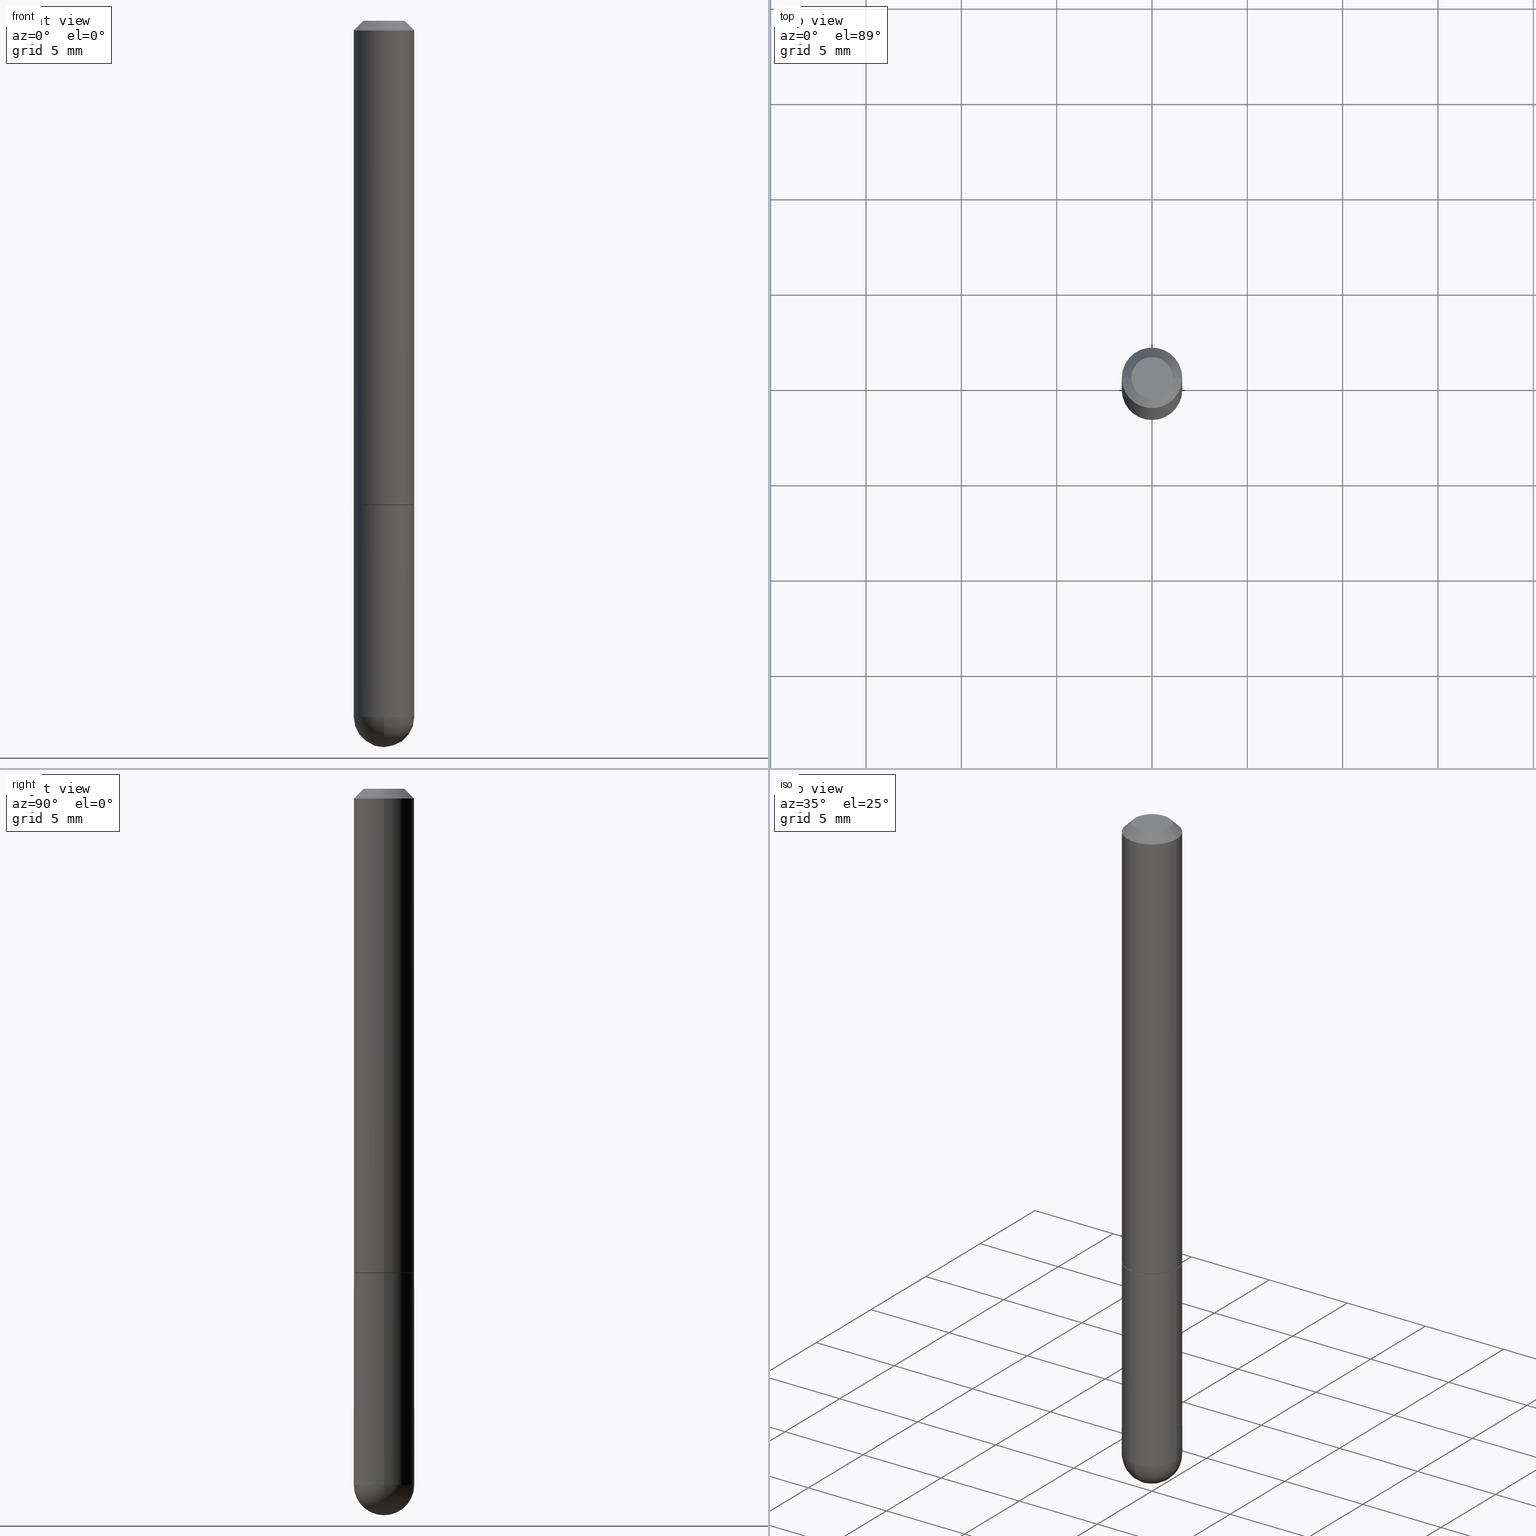
[diagram: canonical four-view strip — front | top / right | iso, engineering-drawing reading convention]
A machine part, canonical four-view strip (front | top / right | iso — engineering-drawing reading convention). The complete STEP part file that produces these views, byte-faithful:
ISO-10303-21;
HEADER;
FILE_DESCRIPTION (( 'STEP AP203' ),
    '1' );
FILE_NAME ('30858.STEP',
    '2024-02-21T16:42:19',
    ( '' ),
    ( '' ),
    'SwSTEP 2.0',
    'SolidWorks 2023',
    '' );
FILE_SCHEMA (( 'CONFIG_CONTROL_DESIGN' ));
ENDSEC;

DATA;
#1 =( CONVERSION_BASED_UNIT ( 'INCH', #292 ) LENGTH_UNIT ( ) NAMED_UNIT ( #169 ) );
#2 = EDGE_LOOP ( 'NONE', ( #7, #133, #82, #148 ) ) ;
#3 = DIRECTION ( 'NONE',  ( 6.982962677686265922E-15, 1.000000000000000000, -4.370956789862807739E-15 ) ) ;
#4 = EDGE_CURVE ( 'NONE', #388, #5, #366, .T. ) ;
#5 = VERTEX_POINT ( 'NONE', #336 ) ;
#6 = APPROVAL_STATUS ( 'not_yet_approved' ) ;
#7 = ORIENTED_EDGE ( 'NONE', *, *, #222, .F. ) ;
#8 = CIRCLE ( 'NONE', #97, 0.06149999999999999911 ) ;
#9 = DATE_TIME_ROLE ( 'creation_date' ) ;
#10 = CARTESIAN_POINT ( 'NONE',  ( 0.000000000000000000, 0.000000000000000000, 0.000000000000000000 ) ) ;
#11 = EDGE_CURVE ( 'NONE', #197, #173, #402, .T. ) ;
#12 = MANIFOLD_SOLID_BREP ( 'Body-Move/Copy2[1]', #325 ) ;
#13 = COORDINATED_UNIVERSAL_TIME_OFFSET ( 5, 0, .BEHIND. ) ;
#14 = ORIENTED_EDGE ( 'NONE', *, *, #85, .T. ) ;
#15 = PRODUCT_DEFINITION ( 'UNKNOWN', '', #84, #73 ) ;
#16 = PERSON_AND_ORGANIZATION ( #90, #67 ) ;
#17 = ORIENTED_EDGE ( 'NONE', *, *, #331, .T. ) ;
#18 = ORIENTED_EDGE ( 'NONE', *, *, #337, .F. ) ;
#19 = CARTESIAN_POINT ( 'NONE',  ( -0.06249999999999995143, 3.666055405785281740E-16, -0.02000000000000006981 ) ) ;
#20 = DIRECTION ( 'NONE',  ( -2.438088387897960049E-29, 3.491481338843145188E-15, 1.000000000000000000 ) ) ;
#21 = EDGE_CURVE ( 'NONE', #359, #357, #263, .T. ) ;
#22 = AXIS2_PLACEMENT_3D ( 'NONE', #220, #405, #128 ) ;
#23 = CLOSED_SHELL ( 'NONE', ( #65, #59, #294, #266, #350, #280, #168, #360 ) ) ;
#24 = DIRECTION ( 'NONE',  ( -2.445468806185136597E-29, 3.491481338843145583E-15, 1.000000000000000000 ) ) ;
#25 = CYLINDRICAL_SURFACE ( 'NONE', #347, 0.06249999999999997224 ) ;
#26 = SPHERICAL_SURFACE ( 'NONE', #394, 0.06250000000000018041 ) ;
#27 = FACE_OUTER_BOUND ( 'NONE', #370, .T. ) ;
#28 = LOCAL_TIME ( 11, 42, 19.00000000000000000, #48 ) ;
#29 = ORIENTED_EDGE ( 'NONE', *, *, #218, .F. ) ;
#30 = CARTESIAN_POINT ( 'NONE',  ( 3.184241630977247611E-29, -5.493186792727071849E-15, -1.437500000000000000 ) ) ;
#31 = VERTEX_POINT ( 'NONE', #272 ) ;
#32 = DIRECTION ( 'NONE',  ( 1.000000000000000000, -6.982962677686265922E-15, 4.852736867747402641E-29 ) ) ;
#33 = EDGE_LOOP ( 'NONE', ( #302, #29 ) ) ;
#34 = EDGE_CURVE ( 'NONE', #398, #359, #121, .T. ) ;
#35 = FACE_OUTER_BOUND ( 'NONE', #188, .T. ) ;
#36 = CIRCLE ( 'NONE', #333, 0.06250000000000013878 ) ;
#37 = ORIENTED_EDGE ( 'NONE', *, *, #11, .T. ) ;
#38 = AXIS2_PLACEMENT_3D ( 'NONE', #260, #374, #83 ) ;
#39 = DIRECTION ( 'NONE',  ( 0.7071067811865472397, -7.319954787623254468E-15, -0.7071067811865477948 ) ) ;
#40 = ORIENTED_EDGE ( 'NONE', *, *, #85, .F. ) ;
#41 = APPROVAL_ROLE ( '' ) ;
#42 = VERTEX_POINT ( 'NONE', #369 ) ;
#43 = CARTESIAN_POINT ( 'NONE',  ( 0.000000000000000000, 0.000000000000000000, 0.000000000000000000 ) ) ;
#44 = ORIENTED_EDGE ( 'NONE', *, *, #144, .F. ) ;
#45 = VECTOR ( 'NONE', #285, 39.37007874015748143 ) ;
#46 = APPLICATION_PROTOCOL_DEFINITION ( 'international standard', 'config_control_design', 1994, #257 ) ;
#47 = ORIENTED_EDGE ( 'NONE', *, *, #253, .T. ) ;
#48 = COORDINATED_UNIVERSAL_TIME_OFFSET ( 5, 0, .BEHIND. ) ;
#49 = DIRECTION ( 'NONE',  ( -2.445468806185136597E-29, 3.491481338843145583E-15, 1.000000000000000000 ) ) ;
#50 = ORIENTED_EDGE ( 'NONE', *, *, #247, .T. ) ;
#51 = DIRECTION ( 'NONE',  ( -0.7071067811866199593, 7.493145998870616062E-15, 0.7071067811864750752 ) ) ;
#52 = CC_DESIGN_PERSON_AND_ORGANIZATION_ASSIGNMENT ( #16, #330, ( #108 ) ) ;
#53 = LINE ( 'NONE', #159, #45 ) ;
#54 = PLANE ( 'NONE',  #223 ) ;
#55 = EDGE_CURVE ( 'NONE', #354, #107, #306, .T. ) ;
#56 = LINE ( 'NONE', #154, #224 ) ;
#57 = PLANE ( 'NONE',  #275 ) ;
#58 = DIRECTION ( 'NONE',  ( -2.445468806185136597E-29, 3.491481338843145583E-15, 1.000000000000000000 ) ) ;
#59 = ADVANCED_FACE ( 'NONE', ( #213 ), #207, .T. ) ;
#60 = DIRECTION ( 'NONE',  ( -1.000000000000000000, 6.982962677686265922E-15, -4.876176775795935793E-29 ) ) ;
#61 = VERTEX_POINT ( 'NONE', #244 ) ;
#62 = CARTESIAN_POINT ( 'NONE',  ( 0.06249999999999995143, -4.986107516375835278E-16, -0.02000000000000006981 ) ) ;
#63 = DIRECTION ( 'NONE',  ( -2.445468806185136597E-29, 3.491481338843145583E-15, 1.000000000000000000 ) ) ;
#64 = EDGE_LOOP ( 'NONE', ( #202, #339 ) ) ;
#65 = ADVANCED_FACE ( 'NONE', ( #211 ), #313, .T. ) ;
#66 =( LENGTH_UNIT ( ) NAMED_UNIT ( * ) SI_UNIT ( $, .METRE. ) );
#67 = ORGANIZATION ( 'UNSPECIFIED', 'UNSPECIFIED', '' ) ;
#68 = ORIENTED_EDGE ( 'NONE', *, *, #4, .F. ) ;
#69 =( NAMED_UNIT ( * ) SI_UNIT ( $, .STERADIAN. ) SOLID_ANGLE_UNIT ( ) );
#70 = ORIENTED_EDGE ( 'NONE', *, *, #74, .F. ) ;
#71 = PERSON_AND_ORGANIZATION ( #90, #67 ) ;
#72 = DIRECTION ( 'NONE',  ( -2.445468806185136597E-29, 3.491481338843145583E-15, 1.000000000000000000 ) ) ;
#73 = DESIGN_CONTEXT ( 'detailed design', #257, 'design' ) ;
#74 = EDGE_CURVE ( 'NONE', #173, #388, #345, .T. ) ;
#75 = CARTESIAN_POINT ( 'NONE',  ( 2.445468806185136877E-29, -3.491481338843145977E-15, -1.000000000000000222 ) ) ;
#76 = AXIS2_PLACEMENT_3D ( 'NONE', #399, #241, #303 ) ;
#77 = AXIS2_PLACEMENT_3D ( 'NONE', #123, #130, #346 ) ;
#78 = CIRCLE ( 'NONE', #170, 0.06249999999999995143 ) ;
#79 = SHAPE_DEFINITION_REPRESENTATION ( #102, #167 ) ;
#80 = CARTESIAN_POINT ( 'NONE',  ( -0.06250000000000004163, 4.440892098500629120E-16, -3.074334431409318216E-30 ) ) ;
#81 = APPROVAL_DATE_TIME ( #149, #319 ) ;
#82 = ORIENTED_EDGE ( 'NONE', *, *, #236, .T. ) ;
#83 = DIRECTION ( 'NONE',  ( 6.982962677686266711E-15, 1.000000000000000000, 0.000000000000000000 ) ) ;
#84 = PRODUCT_DEFINITION_FORMATION_WITH_SPECIFIED_SOURCE ( 'ANY', '', #108, .NOT_KNOWN. ) ;
#85 = EDGE_CURVE ( 'NONE', #197, #5, #230, .T. ) ;
#86 = APPLICATION_CONTEXT ( 'configuration controlled 3d designs of mechanical parts and assemblies' ) ;
#87 = AXIS2_PLACEMENT_3D ( 'NONE', #143, #146, #249 ) ;
#88 = CARTESIAN_POINT ( 'NONE',  ( 0.06249999999999995143, -4.986107516375835278E-16, -0.02000000000000006981 ) ) ;
#89 = DIRECTION ( 'NONE',  ( 1.000000000000000000, -6.982962677686270655E-15, 0.000000000000000000 ) ) ;
#90 = PERSON ( 'UNSPECIFIED', 'UNSPECIFIED', 'UNSPECIFIED', ('UNSPECIFIED'), ('UNSPECIFIED'), ('UNSPECIFIED') ) ;
#91 = DIRECTION ( 'NONE',  ( 6.982962677686265922E-15, 1.000000000000000000, -4.370956789862807739E-15 ) ) ;
#92 = CONICAL_SURFACE ( 'NONE', #237, 0.06149999999999999911, 0.7853981633975507526 ) ;
#93 = DIRECTION ( 'NONE',  ( 1.000000000000000000, -6.982962677686268288E-15, 0.000000000000000000 ) ) ;
#94 = DIRECTION ( 'NONE',  ( -1.000000000000000000, 6.982962677686265922E-15, -4.883557194083112340E-29 ) ) ;
#95 = DIRECTION ( 'NONE',  ( -2.445468806185136597E-29, 3.491481338843145583E-15, 1.000000000000000000 ) ) ;
#96 = EDGE_CURVE ( 'NONE', #398, #173, #78, .T. ) ;
#97 = AXIS2_PLACEMENT_3D ( 'NONE', #190, #403, #125 ) ;
#98 = DIRECTION ( 'NONE',  ( 1.000000000000000000, -6.982962677686265922E-15, 4.852736867747402641E-29 ) ) ;
#99 = ORIENTED_EDGE ( 'NONE', *, *, #242, .F. ) ;
#100 = CARTESIAN_POINT ( 'NONE',  ( -0.06249999999999995143, -3.811153671865022332E-15, -1.437500000000000222 ) ) ;
#101 = ORIENTED_EDGE ( 'NONE', *, *, #111, .F. ) ;
#102 = PRODUCT_DEFINITION_SHAPE ( 'NONE', 'NONE',  #15 ) ;
#103 = DIRECTION ( 'NONE',  ( -2.445468806185136597E-29, 3.491481338843145583E-15, 1.000000000000000000 ) ) ;
#104 = VERTEX_POINT ( 'NONE', #88 ) ;
#105 = DATE_AND_TIME ( #179, #160 ) ;
#106 = AXIS2_PLACEMENT_3D ( 'NONE', #43, #109, #299 ) ;
#107 = VERTEX_POINT ( 'NONE', #19 ) ;
#108 = PRODUCT ( '30858', '30858', '', ( #265 ) ) ;
#109 = DIRECTION ( 'NONE',  ( 0.000000000000000000, 0.000000000000000000, 1.000000000000000000 ) ) ;
#110 = DIRECTION ( 'NONE',  ( -2.445468806185136877E-29, 3.491481338843145188E-15, 1.000000000000000000 ) ) ;
#111 = EDGE_CURVE ( 'NONE', #388, #357, #255, .T. ) ;
#112 = CALENDAR_DATE ( 2024, 21, 2 ) ;
#113 = ORIENTED_EDGE ( 'NONE', *, *, #337, .T. ) ;
#114 = APPROVAL_ROLE ( '' ) ;
#115 = ORIENTED_EDGE ( 'NONE', *, *, #391, .T. ) ;
#116 = AXIS2_PLACEMENT_3D ( 'NONE', #10, #390, #329 ) ;
#117 = AXIS2_PLACEMENT_3D ( 'NONE', #30, #94, #3 ) ;
#118 = CIRCLE ( 'NONE', #348, 0.06249999999999995143 ) ;
#119 = PERSON_AND_ORGANIZATION ( #90, #67 ) ;
#120 = ORIENTED_EDGE ( 'NONE', *, *, #343, .F. ) ;
#121 = LINE ( 'NONE', #332, #182 ) ;
#122 = CC_DESIGN_PERSON_AND_ORGANIZATION_ASSIGNMENT ( #243, #271, ( #281 ) ) ;
#123 = CARTESIAN_POINT ( 'NONE',  ( 2.445468806185136877E-29, -3.491481338843145977E-15, -1.000000000000000222 ) ) ;
#124 = CIRCLE ( 'NONE', #353, 0.06249999999999995143 ) ;
#125 = DIRECTION ( 'NONE',  ( 1.000000000000000000, -6.982962677686269866E-15, 0.000000000000000000 ) ) ;
#126 = CC_DESIGN_DATE_AND_TIME_ASSIGNMENT ( #368, #273, ( #281 ) ) ;
#127 = FACE_OUTER_BOUND ( 'NONE', #33, .T. ) ;
#128 = DIRECTION ( 'NONE',  ( -1.000000000000000000, 6.982962677686266711E-15, 0.000000000000000000 ) ) ;
#129 = APPROVAL_PERSON_ORGANIZATION ( #185, #307, #206 ) ;
#130 = DIRECTION ( 'NONE',  ( -2.445468806185136597E-29, 3.491481338843145583E-15, 1.000000000000000000 ) ) ;
#131 = CYLINDRICAL_SURFACE ( 'NONE', #135, 0.06249999999999997224 ) ;
#132 = DIRECTION ( 'NONE',  ( 2.445468806185136597E-29, -3.491481338843145583E-15, -1.000000000000000000 ) ) ;
#133 = ORIENTED_EDGE ( 'NONE', *, *, #218, .T. ) ;
#134 = EDGE_CURVE ( 'NONE', #104, #107, #118, .T. ) ;
#135 = AXIS2_PLACEMENT_3D ( 'NONE', #174, #164, #380 ) ;
#136 = CARTESIAN_POINT ( 'NONE',  ( -0.06249999999999995143, 3.666055405785281740E-16, -0.02000000000000006981 ) ) ;
#137 = VECTOR ( 'NONE', #254, 39.37007874015748143 ) ;
#138 = CARTESIAN_POINT ( 'NONE',  ( -5.219257071676098903E-45, 7.451715851902235946E-31, 2.134256245050205701E-16 ) ) ;
#139 = EDGE_LOOP ( 'NONE', ( #270, #232, #239, #293, #371 ) ) ;
#140 = FACE_OUTER_BOUND ( 'NONE', #2, .T. ) ;
#141 = VERTEX_POINT ( 'NONE', #191 ) ;
#142 = PERSON_AND_ORGANIZATION_ROLE ( 'creator' ) ;
#143 = CARTESIAN_POINT ( 'NONE',  ( 3.515361408891134418E-29, -5.019004424587023131E-15, -1.437500000000000222 ) ) ;
#144 = EDGE_CURVE ( 'NONE', #141, #104, #156, .T. ) ;
#145 = PERSON_AND_ORGANIZATION_ROLE ( 'design_supplier' ) ;
#146 = DIRECTION ( 'NONE',  ( -2.445468806185136597E-29, 3.491481338843145583E-15, 1.000000000000000000 ) ) ;
#147 = APPROVAL_STATUS ( 'not_yet_approved' ) ;
#148 = ORIENTED_EDGE ( 'NONE', *, *, #247, .F. ) ;
#149 = DATE_AND_TIME ( #246, #28 ) ;
#150 = ORIENTED_EDGE ( 'NONE', *, *, #331, .F. ) ;
#151 = CIRCLE ( 'NONE', #376, 0.04249999999999968386 ) ;
#152 = EDGE_LOOP ( 'NONE', ( #40, #37, #365, #120 ) ) ;
#153 = CARTESIAN_POINT ( 'NONE',  ( 2.445468806185136877E-29, -3.491481338843145977E-15, -1.000000000000000222 ) ) ;
#154 = CARTESIAN_POINT ( 'NONE',  ( -0.06149999999999999911, -3.054497556350684369E-15, -1.000000000000000222 ) ) ;
#155 = AXIS2_PLACEMENT_3D ( 'NONE', #334, #49, #186 ) ;
#156 = LINE ( 'NONE', #400, #172 ) ;
#157 = DIRECTION ( 'NONE',  ( -2.445468806185136597E-29, 3.491481338843145583E-15, 1.000000000000000000 ) ) ;
#158 = ADVANCED_FACE ( 'NONE', ( #341 ), #25, .T. ) ;
#159 = CARTESIAN_POINT ( 'NONE',  ( 0.06149999999999999911, -3.920933543520851632E-15, -1.000000000000000222 ) ) ;
#160 = LOCAL_TIME ( 11, 42, 19.00000000000000000, #187 ) ;
#161 = CARTESIAN_POINT ( 'NONE',  ( 0.06250000000000000000, -3.927916506198537646E-15, -1.000000000000000222 ) ) ;
#162 = MANIFOLD_SOLID_BREP ( 'Body-Move/Copy2[2]', #23 ) ;
#163 = ORIENTED_EDGE ( 'NONE', *, *, #363, .T. ) ;
#164 = DIRECTION ( 'NONE',  ( -2.445468806185136597E-29, 3.491481338843145583E-15, 1.000000000000000000 ) ) ;
#165 = DIRECTION ( 'NONE',  ( 1.000000000000000000, -6.982962677686262766E-15, 0.000000000000000000 ) ) ;
#166 = EDGE_LOOP ( 'NONE', ( #181, #113, #184, #278 ) ) ;
#167 = ADVANCED_BREP_SHAPE_REPRESENTATION ( '30858', ( #12, #162, #106 ), #217 ) ;
#168 = ADVANCED_FACE ( 'NONE', ( #127 ), #57, .F. ) ;
#169 = DIMENSIONAL_EXPONENTS ( 1.000000000000000000, 0.000000000000000000, 0.000000000000000000, 0.000000000000000000, 0.000000000000000000, 0.000000000000000000, 0.000000000000000000 ) ;
#170 = AXIS2_PLACEMENT_3D ( 'NONE', #315, #372, #216 ) ;
#171 = CIRCLE ( 'NONE', #367, 0.06250000000000013878 ) ;
#172 = VECTOR ( 'NONE', #256, 39.37007874015748143 ) ;
#173 = VERTEX_POINT ( 'NONE', #225 ) ;
#174 = CARTESIAN_POINT ( 'NONE',  ( 0.000000000000000000, 0.000000000000000000, 0.000000000000000000 ) ) ;
#175 = EDGE_LOOP ( 'NONE', ( #47, #318, #99, #277 ) ) ;
#176 = CALENDAR_DATE ( 2024, 21, 2 ) ;
#177 = ADVANCED_FACE ( 'NONE', ( #219 ), #54, .F. ) ;
#178 = CARTESIAN_POINT ( 'NONE',  ( 3.515361408891134418E-29, -5.019004424587023131E-15, -1.437500000000000222 ) ) ;
#179 = CALENDAR_DATE ( 2024, 21, 2 ) ;
#180 = APPROVAL_PERSON_ORGANIZATION ( #328, #389, #41 ) ;
#181 = ORIENTED_EDGE ( 'NONE', *, *, #373, .F. ) ;
#182 = VECTOR ( 'NONE', #362, 39.37007874015748143 ) ;
#183 = CALENDAR_DATE ( 2024, 21, 2 ) ;
#184 = ORIENTED_EDGE ( 'NONE', *, *, #134, .T. ) ;
#185 = PERSON_AND_ORGANIZATION ( #90, #67 ) ;
#186 = DIRECTION ( 'NONE',  ( 1.000000000000000000, -6.982962677686269866E-15, 0.000000000000000000 ) ) ;
#187 = COORDINATED_UNIVERSAL_TIME_OFFSET ( 5, 0, .BEHIND. ) ;
#188 = EDGE_LOOP ( 'NONE', ( #17, #300 ) ) ;
#189 = DIRECTION ( 'NONE',  ( -2.445468806185136597E-29, 3.491481338843145583E-15, 1.000000000000000000 ) ) ;
#190 = CARTESIAN_POINT ( 'NONE',  ( 2.445468806185136877E-29, -3.491481338843145977E-15, -1.000000000000000222 ) ) ;
#191 = CARTESIAN_POINT ( 'NONE',  ( 0.06250000000000013878, -3.924425024859695428E-15, -0.9990000000000002212 ) ) ;
#192 = DIRECTION ( 'NONE',  ( 1.000000000000000000, -6.982962677686266711E-15, 4.876176775795935793E-29 ) ) ;
#193 = DIRECTION ( 'NONE',  ( 2.438088387897960049E-29, -3.491481338843145188E-15, -1.000000000000000000 ) ) ;
#194 = DIRECTION ( 'NONE',  ( -1.000000000000000000, 6.982962677686266711E-15, 0.000000000000000000 ) ) ;
#195 = AXIS2_PLACEMENT_3D ( 'NONE', #204, #132, #194 ) ;
#196 = FACE_OUTER_BOUND ( 'NONE', #152, .T. ) ;
#197 = VERTEX_POINT ( 'NONE', #349 ) ;
#198 = CARTESIAN_POINT ( 'NONE',  ( -5.219257071676098903E-45, 7.451715851902235946E-31, 2.134256245050205701E-16 ) ) ;
#199 = PRODUCT_RELATED_PRODUCT_CATEGORY ( 'detail', '', ( #108 ) ) ;
#200 = ORIENTED_EDGE ( 'NONE', *, *, #11, .F. ) ;
#201 = CARTESIAN_POINT ( 'NONE',  ( 0.06249999999999995143, -4.691678049070475040E-15, -1.437500000000000222 ) ) ;
#202 = ORIENTED_EDGE ( 'NONE', *, *, #378, .T. ) ;
#203 = AXIS2_PLACEMENT_3D ( 'NONE', #412, #356, #165 ) ;
#204 = CARTESIAN_POINT ( 'NONE',  ( 4.890937612370289799E-31, -6.982962677686315028E-17, -0.02000000000000006981 ) ) ;
#205 = ORIENTED_EDGE ( 'NONE', *, *, #144, .T. ) ;
#206 = APPROVAL_ROLE ( '' ) ;
#207 = CYLINDRICAL_SURFACE ( 'NONE', #116, 0.06250000000000004163 ) ;
#208 = DIRECTION ( 'NONE',  ( 1.000000000000000000, -6.982962677686262766E-15, 0.000000000000000000 ) ) ;
#209 = AXIS2_PLACEMENT_3D ( 'NONE', #289, #103, #355 ) ;
#210 = ADVANCED_FACE ( 'NONE', ( #279 ), #26, .T. ) ;
#211 = FACE_OUTER_BOUND ( 'NONE', #175, .T. ) ;
#212 = APPROVAL_DATE_TIME ( #361, #307 ) ;
#213 = FACE_OUTER_BOUND ( 'NONE', #323, .T. ) ;
#214 = CC_DESIGN_PERSON_AND_ORGANIZATION_ASSIGNMENT ( #119, #296, ( #84 ) ) ;
#215 = ORIENTED_EDGE ( 'NONE', *, *, #55, .F. ) ;
#216 = DIRECTION ( 'NONE',  ( 1.000000000000000000, -6.982962677686268288E-15, 0.000000000000000000 ) ) ;
#217 =( GEOMETRIC_REPRESENTATION_CONTEXT ( 3 ) GLOBAL_UNCERTAINTY_ASSIGNED_CONTEXT ( ( #384 ) ) GLOBAL_UNIT_ASSIGNED_CONTEXT ( ( #1, #364, #69 ) ) REPRESENTATION_CONTEXT ( 'NONE', 'WORKASPACE' ) );
#218 = EDGE_CURVE ( 'NONE', #42, #61, #317, .T. ) ;
#219 = FACE_OUTER_BOUND ( 'NONE', #64, .T. ) ;
#220 = CARTESIAN_POINT ( 'NONE',  ( 4.890937612370289799E-31, -6.982962677686315028E-17, -0.02000000000000006981 ) ) ;
#221 = DIRECTION ( 'NONE',  ( -1.000000000000000000, 6.982962677686265922E-15, -4.876176775795935793E-29 ) ) ;
#222 = EDGE_CURVE ( 'NONE', #42, #354, #56, .T. ) ;
#223 = AXIS2_PLACEMENT_3D ( 'NONE', #310, #193, #221 ) ;
#224 = VECTOR ( 'NONE', #51, 39.37007874015748143 ) ;
#225 = CARTESIAN_POINT ( 'NONE',  ( -4.440892098500294840E-16, -0.06250000000000532907, -1.437500000000000000 ) ) ;
#226 = DIRECTION ( 'NONE',  ( 1.000000000000000000, -6.982962677686268288E-15, 0.000000000000000000 ) ) ;
#227 = DIRECTION ( 'NONE',  ( -2.445468806185136597E-29, 3.491481338843145583E-15, 1.000000000000000000 ) ) ;
#228 = ORIENTED_EDGE ( 'NONE', *, *, #242, .T. ) ;
#229 = CC_DESIGN_APPROVAL ( #389, ( #84 ) ) ;
#230 = CIRCLE ( 'NONE', #38, 0.06250000000000018041 ) ;
#231 = CARTESIAN_POINT ( 'NONE',  ( -0.06250000000000000000, -3.811153671865022332E-15, -1.000000000000000222 ) ) ;
#232 = ORIENTED_EDGE ( 'NONE', *, *, #96, .T. ) ;
#233 = CC_DESIGN_DATE_AND_TIME_ASSIGNMENT ( #105, #9, ( #15 ) ) ;
#234 = ORIENTED_EDGE ( 'NONE', *, *, #55, .T. ) ;
#235 = FACE_OUTER_BOUND ( 'NONE', #139, .T. ) ;
#236 = EDGE_CURVE ( 'NONE', #61, #141, #53, .T. ) ;
#237 = AXIS2_PLACEMENT_3D ( 'NONE', #320, #227, #379 ) ;
#238 = APPROVAL_PERSON_ORGANIZATION ( #250, #319, #114 ) ;
#239 = ORIENTED_EDGE ( 'NONE', *, *, #74, .T. ) ;
#240 = COORDINATED_UNIVERSAL_TIME_OFFSET ( 5, 0, .BEHIND. ) ;
#241 = DIRECTION ( 'NONE',  ( -1.000000000000000000, 7.105427357601001070E-15, -4.926315508542082329E-29 ) ) ;
#242 = EDGE_CURVE ( 'NONE', #141, #354, #36, .T. ) ;
#243 = PERSON_AND_ORGANIZATION ( #90, #67 ) ;
#244 = CARTESIAN_POINT ( 'NONE',  ( 0.06149999999999999911, -3.920933543520851632E-15, -1.000000000000000222 ) ) ;
#245 = AXIS2_PLACEMENT_3D ( 'NONE', #75, #72, #208 ) ;
#246 = CALENDAR_DATE ( 2024, 21, 2 ) ;
#247 = EDGE_CURVE ( 'NONE', #354, #141, #171, .T. ) ;
#248 = LOCAL_TIME ( 11, 42, 19.00000000000000000, #392 ) ;
#249 = DIRECTION ( 'NONE',  ( 1.000000000000000000, -6.982962677686268288E-15, 0.000000000000000000 ) ) ;
#250 = PERSON_AND_ORGANIZATION ( #90, #67 ) ;
#251 = EDGE_LOOP ( 'NONE', ( #200, #14, #68, #70 ) ) ;
#252 = ORIENTED_EDGE ( 'NONE', *, *, #134, .F. ) ;
#253 = EDGE_CURVE ( 'NONE', #61, #42, #8, .T. ) ;
#254 = DIRECTION ( 'NONE',  ( -2.445468806185136877E-29, 3.491481338843145188E-15, 1.000000000000000000 ) ) ;
#255 = LINE ( 'NONE', #377, #137 ) ;
#256 = DIRECTION ( 'NONE',  ( -2.445468806185136877E-29, 3.491481338843145188E-15, 1.000000000000000000 ) ) ;
#257 = APPLICATION_CONTEXT ( 'configuration controlled 3d designs of mechanical parts and assemblies' ) ;
#258 = CC_DESIGN_PERSON_AND_ORGANIZATION_ASSIGNMENT ( #71, #145, ( #84 ) ) ;
#259 = DIRECTION ( 'NONE',  ( -2.445468806185136597E-29, 3.491481338843145583E-15, 1.000000000000000000 ) ) ;
#260 = CARTESIAN_POINT ( 'NONE',  ( 3.184241630977247611E-29, -5.493186792727071849E-15, -1.437500000000000000 ) ) ;
#261 = CYLINDRICAL_SURFACE ( 'NONE', #209, 0.06250000000000004163 ) ;
#262 = CIRCLE ( 'NONE', #203, 0.06250000000000000000 ) ;
#263 = CIRCLE ( 'NONE', #245, 0.06250000000000000000 ) ;
#264 = DIRECTION ( 'NONE',  ( -0.7071067811865472397, 2.468850131082253905E-15, -0.7071067811865477948 ) ) ;
#265 = MECHANICAL_CONTEXT ( 'NONE', #86, 'mechanical' ) ;
#266 = ADVANCED_FACE ( 'NONE', ( #284 ), #286, .T. ) ;
#267 = EDGE_LOOP ( 'NONE', ( #18, #150, #115, #163 ) ) ;
#268 = CC_DESIGN_APPROVAL ( #307, ( #15 ) ) ;
#269 = DATE_AND_TIME ( #176, #401 ) ;
#270 = ORIENTED_EDGE ( 'NONE', *, *, #34, .F. ) ;
#271 = PERSON_AND_ORGANIZATION_ROLE ( 'classification_officer' ) ;
#272 = CARTESIAN_POINT ( 'NONE',  ( -0.04249999999999968386, 3.316907271900965249E-16, 2.134256245050183761E-16 ) ) ;
#273 = DATE_TIME_ROLE ( 'classification_date' ) ;
#274 = ORIENTED_EDGE ( 'NONE', *, *, #343, .T. ) ;
#275 = AXIS2_PLACEMENT_3D ( 'NONE', #153, #20, #282 ) ;
#276 = APPROVAL_DATE_TIME ( #269, #389 ) ;
#277 = ORIENTED_EDGE ( 'NONE', *, *, #236, .F. ) ;
#278 = ORIENTED_EDGE ( 'NONE', *, *, #391, .F. ) ;
#279 = FACE_OUTER_BOUND ( 'NONE', #251, .T. ) ;
#280 = ADVANCED_FACE ( 'NONE', ( #140 ), #92, .T. ) ;
#281 = SECURITY_CLASSIFICATION ( '', '', #396 ) ;
#282 = DIRECTION ( 'NONE',  ( 1.000000000000000000, -6.982962677686265922E-15, 4.876176775795935793E-29 ) ) ;
#283 = CC_DESIGN_PERSON_AND_ORGANIZATION_ASSIGNMENT ( #387, #142, ( #15 ) ) ;
#284 = FACE_OUTER_BOUND ( 'NONE', #267, .T. ) ;
#285 = DIRECTION ( 'NONE',  ( 0.7071067811866199593, -2.468850131083015945E-15, 0.7071067811864750752 ) ) ;
#286 = CONICAL_SURFACE ( 'NONE', #22, 0.06249999999999995143, 0.7853981633974479459 ) ;
#287 = DIRECTION ( 'NONE',  ( -2.445468806185136597E-29, 3.491481338843145583E-15, 1.000000000000000000 ) ) ;
#288 = CARTESIAN_POINT ( 'NONE',  ( -0.06250000000000013878, -1.334820532290516771E-15, -0.9990000000000002212 ) ) ;
#289 = CARTESIAN_POINT ( 'NONE',  ( 0.000000000000000000, 0.000000000000000000, 0.000000000000000000 ) ) ;
#290 = CONICAL_SURFACE ( 'NONE', #195, 0.06249999999999995143, 0.7853981633974479459 ) ;
#291 = VECTOR ( 'NONE', #110, 39.37007874015748143 ) ;
#292 = LENGTH_MEASURE_WITH_UNIT ( LENGTH_MEASURE( 0.02539999999999999897 ), #66 );
#293 = ORIENTED_EDGE ( 'NONE', *, *, #111, .T. ) ;
#294 = ADVANCED_FACE ( 'NONE', ( #409 ), #290, .T. ) ;
#295 = CARTESIAN_POINT ( 'NONE',  ( 3.515361408891134418E-29, -5.019004424587023131E-15, -1.437500000000000222 ) ) ;
#296 = PERSON_AND_ORGANIZATION_ROLE ( 'creator' ) ;
#297 = DIRECTION ( 'NONE',  ( -2.445468806185136597E-29, 3.491481338843145583E-15, 1.000000000000000000 ) ) ;
#298 = AXIS2_PLACEMENT_3D ( 'NONE', #138, #63, #98 ) ;
#299 = DIRECTION ( 'NONE',  ( 1.000000000000000000, 0.000000000000000000, 0.000000000000000000 ) ) ;
#300 = ORIENTED_EDGE ( 'NONE', *, *, #373, .T. ) ;
#301 = ADVANCED_FACE ( 'NONE', ( #235 ), #131, .T. ) ;
#302 = ORIENTED_EDGE ( 'NONE', *, *, #253, .F. ) ;
#303 = DIRECTION ( 'NONE',  ( -7.105427357601001859E-15, -1.000000000000000000, 0.000000000000000000 ) ) ;
#304 = ADVANCED_FACE ( 'NONE', ( #196 ), #326, .T. ) ;
#305 = VECTOR ( 'NONE', #264, 39.37007874015748143 ) ;
#306 = LINE ( 'NONE', #80, #291 ) ;
#307 = APPROVAL ( #6, 'UNSPECIFIED' ) ;
#308 = DIRECTION ( 'NONE',  ( -1.000000000000000000, 6.982962677686265922E-15, -4.883557194083112340E-29 ) ) ;
#309 = CARTESIAN_POINT ( 'NONE',  ( 2.443023337378951835E-29, -3.487989857504302970E-15, -0.9990000000000002212 ) ) ;
#310 = CARTESIAN_POINT ( 'NONE',  ( 4.364351673554160748E-16, 0.06249999999999650974, -1.000000000000000444 ) ) ;
#311 = CIRCLE ( 'NONE', #395, 0.06249999999999995143 ) ;
#312 = CC_DESIGN_SECURITY_CLASSIFICATION ( #281, ( #84 ) ) ;
#313 = CONICAL_SURFACE ( 'NONE', #155, 0.06149999999999999911, 0.7853981633975507526 ) ;
#314 = DIRECTION ( 'NONE',  ( 1.000000000000000000, -6.982962677686266711E-15, 0.000000000000000000 ) ) ;
#315 = CARTESIAN_POINT ( 'NONE',  ( 3.515361408891134418E-29, -5.019004424587023131E-15, -1.437500000000000222 ) ) ;
#316 = LINE ( 'NONE', #62, #382 ) ;
#317 = CIRCLE ( 'NONE', #77, 0.06149999999999999911 ) ;
#318 = ORIENTED_EDGE ( 'NONE', *, *, #222, .T. ) ;
#319 = APPROVAL ( #335, 'UNSPECIFIED' ) ;
#320 = CARTESIAN_POINT ( 'NONE',  ( 2.445468806185136877E-29, -3.491481338843145977E-15, -1.000000000000000222 ) ) ;
#321 = ORIENTED_EDGE ( 'NONE', *, *, #363, .F. ) ;
#322 = CARTESIAN_POINT ( 'NONE',  ( 4.890937612370289799E-31, -6.982962677686315028E-17, -0.02000000000000006981 ) ) ;
#323 = EDGE_LOOP ( 'NONE', ( #228, #234, #252, #44 ) ) ;
#324 = AXIS2_PLACEMENT_3D ( 'NONE', #351, #410, #60 ) ;
#325 = CLOSED_SHELL ( 'NONE', ( #158, #304, #210, #177, #301 ) ) ;
#326 = SPHERICAL_SURFACE ( 'NONE', #117, 0.06250000000000018041 ) ;
#327 = ORIENTED_EDGE ( 'NONE', *, *, #378, .F. ) ;
#328 = PERSON_AND_ORGANIZATION ( #90, #67 ) ;
#329 = DIRECTION ( 'NONE',  ( 1.000000000000000000, -6.982962677686266711E-15, 4.876176775795935793E-29 ) ) ;
#330 = PERSON_AND_ORGANIZATION_ROLE ( 'design_owner' ) ;
#331 = EDGE_CURVE ( 'NONE', #31, #393, #406, .T. ) ;
#332 = CARTESIAN_POINT ( 'NONE',  ( -0.06249999999999997224, 4.440892098500624190E-16, -3.074334431409315063E-30 ) ) ;
#333 = AXIS2_PLACEMENT_3D ( 'NONE', #407, #189, #89 ) ;
#334 = CARTESIAN_POINT ( 'NONE',  ( 2.445468806185136877E-29, -3.491481338843145977E-15, -1.000000000000000222 ) ) ;
#335 = APPROVAL_STATUS ( 'not_yet_approved' ) ;
#336 = CARTESIAN_POINT ( 'NONE',  ( 4.364351673554256397E-16, 0.06249999999999480971, -1.437500000000000444 ) ) ;
#337 = EDGE_CURVE ( 'NONE', #393, #104, #316, .T. ) ;
#338 = APPLICATION_PROTOCOL_DEFINITION ( 'international standard', 'config_control_design', 1994, #86 ) ;
#339 = ORIENTED_EDGE ( 'NONE', *, *, #21, .T. ) ;
#340 = LOCAL_TIME ( 11, 42, 19.00000000000000000, #240 ) ;
#341 = FACE_OUTER_BOUND ( 'NONE', #411, .T. ) ;
#342 = CARTESIAN_POINT ( 'NONE',  ( 4.890937612370289799E-31, -6.982962677686315028E-17, -0.02000000000000006981 ) ) ;
#343 = EDGE_CURVE ( 'NONE', #5, #398, #311, .T. ) ;
#344 = DIRECTION ( 'NONE',  ( 1.000000000000000000, -6.982962677686270655E-15, 0.000000000000000000 ) ) ;
#345 = CIRCLE ( 'NONE', #397, 0.06249999999999995143 ) ;
#346 = DIRECTION ( 'NONE',  ( 1.000000000000000000, -6.982962677686269866E-15, 0.000000000000000000 ) ) ;
#347 = AXIS2_PLACEMENT_3D ( 'NONE', #404, #157, #192 ) ;
#348 = AXIS2_PLACEMENT_3D ( 'NONE', #342, #24, #314 ) ;
#349 = CARTESIAN_POINT ( 'NONE',  ( 3.339755826017505008E-29, -5.707577355157432999E-15, -1.500000000000000222 ) ) ;
#350 = ADVANCED_FACE ( 'NONE', ( #27 ), #261, .T. ) ;
#351 = CARTESIAN_POINT ( 'NONE',  ( 2.967759138016640869E-16, 0.04249999999999968386, -4.167514464832228844E-17 ) ) ;
#352 = PLANE ( 'NONE',  #324 ) ;
#353 = AXIS2_PLACEMENT_3D ( 'NONE', #322, #287, #381 ) ;
#354 = VERTEX_POINT ( 'NONE', #288 ) ;
#355 = DIRECTION ( 'NONE',  ( 1.000000000000000000, -6.982962677686266711E-15, 4.876176775795935793E-29 ) ) ;
#356 = DIRECTION ( 'NONE',  ( -2.445468806185136597E-29, 3.491481338843145583E-15, 1.000000000000000000 ) ) ;
#357 = VERTEX_POINT ( 'NONE', #161 ) ;
#358 = LINE ( 'NONE', #136, #305 ) ;
#359 = VERTEX_POINT ( 'NONE', #231 ) ;
#360 = ADVANCED_FACE ( 'NONE', ( #35 ), #352, .F. ) ;
#361 = DATE_AND_TIME ( #183, #340 ) ;
#362 = DIRECTION ( 'NONE',  ( -2.445468806185136877E-29, 3.491481338843145188E-15, 1.000000000000000000 ) ) ;
#363 = EDGE_CURVE ( 'NONE', #107, #104, #124, .T. ) ;
#364 =( NAMED_UNIT ( * ) PLANE_ANGLE_UNIT ( ) SI_UNIT ( $, .RADIAN. ) );
#365 = ORIENTED_EDGE ( 'NONE', *, *, #96, .F. ) ;
#366 = CIRCLE ( 'NONE', #87, 0.06249999999999995143 ) ;
#367 = AXIS2_PLACEMENT_3D ( 'NONE', #309, #259, #344 ) ;
#368 = DATE_AND_TIME ( #112, #248 ) ;
#369 = CARTESIAN_POINT ( 'NONE',  ( -0.06149999999999999911, -3.049199102002462361E-15, -1.000000000000000222 ) ) ;
#370 = EDGE_LOOP ( 'NONE', ( #215, #50, #205, #321 ) ) ;
#371 = ORIENTED_EDGE ( 'NONE', *, *, #21, .F. ) ;
#372 = DIRECTION ( 'NONE',  ( -2.445468806185136597E-29, 3.491481338843145583E-15, 1.000000000000000000 ) ) ;
#373 = EDGE_CURVE ( 'NONE', #393, #31, #151, .T. ) ;
#374 = DIRECTION ( 'NONE',  ( 1.000000000000000000, -6.982962677686265922E-15, 4.883557194083112340E-29 ) ) ;
#375 = CARTESIAN_POINT ( 'NONE',  ( 3.184241630977247611E-29, -5.493186792727071849E-15, -1.437500000000000000 ) ) ;
#376 = AXIS2_PLACEMENT_3D ( 'NONE', #198, #58, #32 ) ;
#377 = CARTESIAN_POINT ( 'NONE',  ( 0.06249999999999997224, -4.364351673553914722E-16, 3.047610484872458469E-30 ) ) ;
#378 = EDGE_CURVE ( 'NONE', #357, #359, #262, .T. ) ;
#379 = DIRECTION ( 'NONE',  ( 1.000000000000000000, -6.982962677686269866E-15, 0.000000000000000000 ) ) ;
#380 = DIRECTION ( 'NONE',  ( 1.000000000000000000, -6.982962677686266711E-15, 4.876176775795935793E-29 ) ) ;
#381 = DIRECTION ( 'NONE',  ( 1.000000000000000000, -6.982962677686266711E-15, 0.000000000000000000 ) ) ;
#382 = VECTOR ( 'NONE', #39, 39.37007874015748143 ) ;
#383 = ORIENTED_EDGE ( 'NONE', *, *, #4, .T. ) ;
#384 = UNCERTAINTY_MEASURE_WITH_UNIT (LENGTH_MEASURE( 1.000000000000000082E-05 ), #1, 'distance_accuracy_value', 'NONE');
#385 = CARTESIAN_POINT ( 'NONE',  ( 0.04249999999999968386, -3.950909582714353640E-16, 2.134256245050229860E-16 ) ) ;
#386 = ORIENTED_EDGE ( 'NONE', *, *, #34, .T. ) ;
#387 = PERSON_AND_ORGANIZATION ( #90, #67 ) ;
#388 = VERTEX_POINT ( 'NONE', #201 ) ;
#389 = APPROVAL ( #147, 'UNSPECIFIED' ) ;
#390 = DIRECTION ( 'NONE',  ( -2.445468806185136597E-29, 3.491481338843145583E-15, 1.000000000000000000 ) ) ;
#391 = EDGE_CURVE ( 'NONE', #31, #107, #358, .T. ) ;
#392 = COORDINATED_UNIVERSAL_TIME_OFFSET ( 5, 0, .BEHIND. ) ;
#393 = VERTEX_POINT ( 'NONE', #385 ) ;
#394 = AXIS2_PLACEMENT_3D ( 'NONE', #375, #308, #91 ) ;
#395 = AXIS2_PLACEMENT_3D ( 'NONE', #295, #95, #226 ) ;
#396 = SECURITY_CLASSIFICATION_LEVEL ( 'unclassified' ) ;
#397 = AXIS2_PLACEMENT_3D ( 'NONE', #178, #297, #93 ) ;
#398 = VERTEX_POINT ( 'NONE', #100 ) ;
#399 = CARTESIAN_POINT ( 'NONE',  ( 3.184241630977247611E-29, -5.493186792727071849E-15, -1.437500000000000000 ) ) ;
#400 = CARTESIAN_POINT ( 'NONE',  ( 0.06250000000000004163, -4.364351673553919652E-16, 3.047610484872461972E-30 ) ) ;
#401 = LOCAL_TIME ( 11, 42, 19.00000000000000000, #13 ) ;
#402 = CIRCLE ( 'NONE', #76, 0.06250000000000018041 ) ;
#403 = DIRECTION ( 'NONE',  ( -2.445468806185136597E-29, 3.491481338843145583E-15, 1.000000000000000000 ) ) ;
#404 = CARTESIAN_POINT ( 'NONE',  ( 0.000000000000000000, 0.000000000000000000, 0.000000000000000000 ) ) ;
#405 = DIRECTION ( 'NONE',  ( 2.445468806185136597E-29, -3.491481338843145583E-15, -1.000000000000000000 ) ) ;
#406 = CIRCLE ( 'NONE', #298, 0.04249999999999968386 ) ;
#407 = CARTESIAN_POINT ( 'NONE',  ( 2.443023337378951835E-29, -3.487989857504302970E-15, -0.9990000000000002212 ) ) ;
#408 = CC_DESIGN_APPROVAL ( #319, ( #281 ) ) ;
#409 = FACE_OUTER_BOUND ( 'NONE', #166, .T. ) ;
#410 = DIRECTION ( 'NONE',  ( 2.438088387897960049E-29, -3.491481338843145188E-15, -1.000000000000000000 ) ) ;
#411 = EDGE_LOOP ( 'NONE', ( #274, #386, #327, #101, #383 ) ) ;
#412 = CARTESIAN_POINT ( 'NONE',  ( 2.445468806185136877E-29, -3.491481338843145977E-15, -1.000000000000000222 ) ) ;
ENDSEC;
END-ISO-10303-21;
